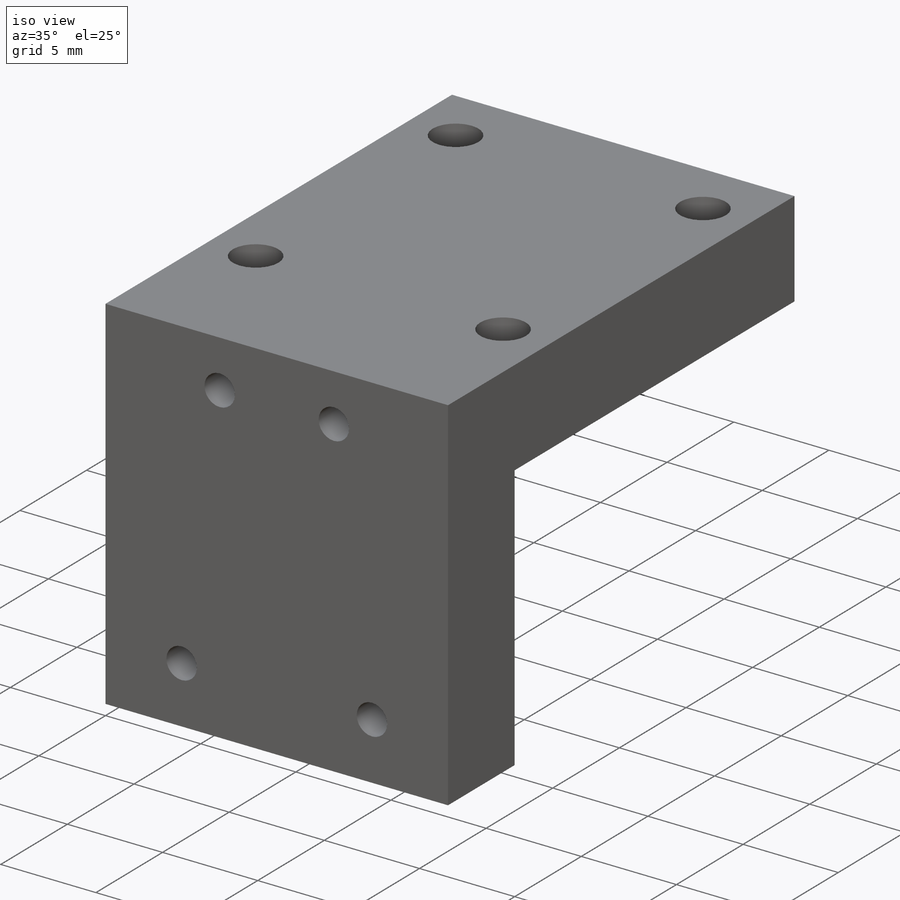
[diagram: iso view]
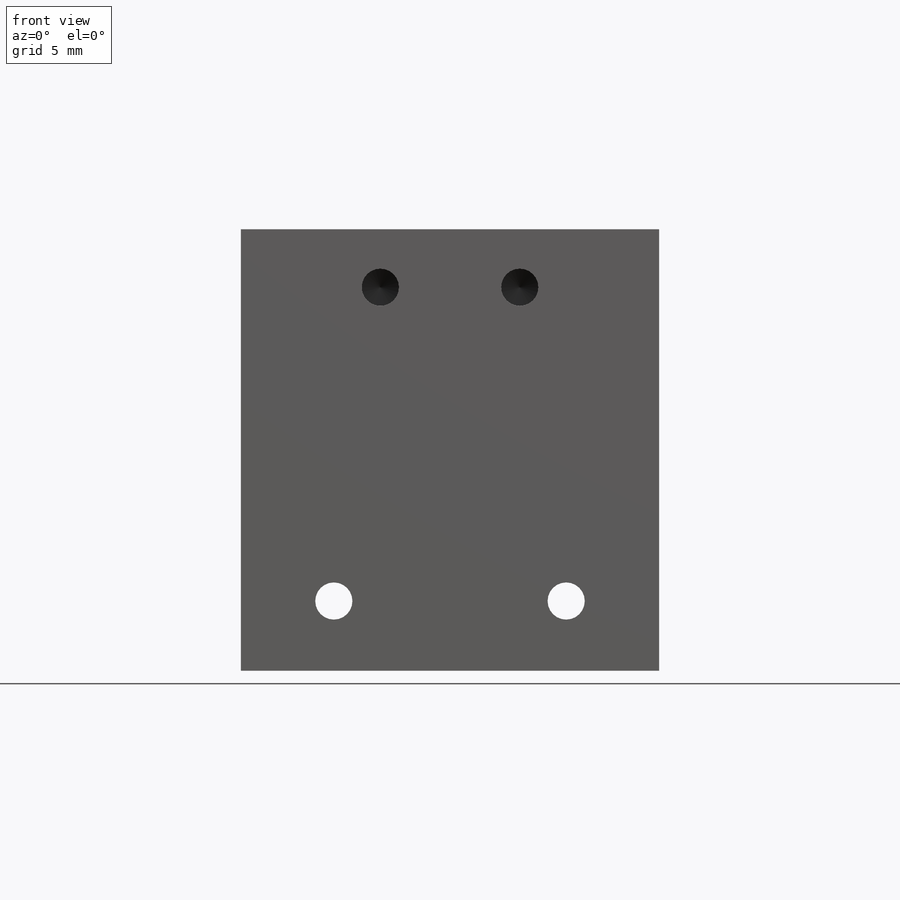
[diagram: front view]
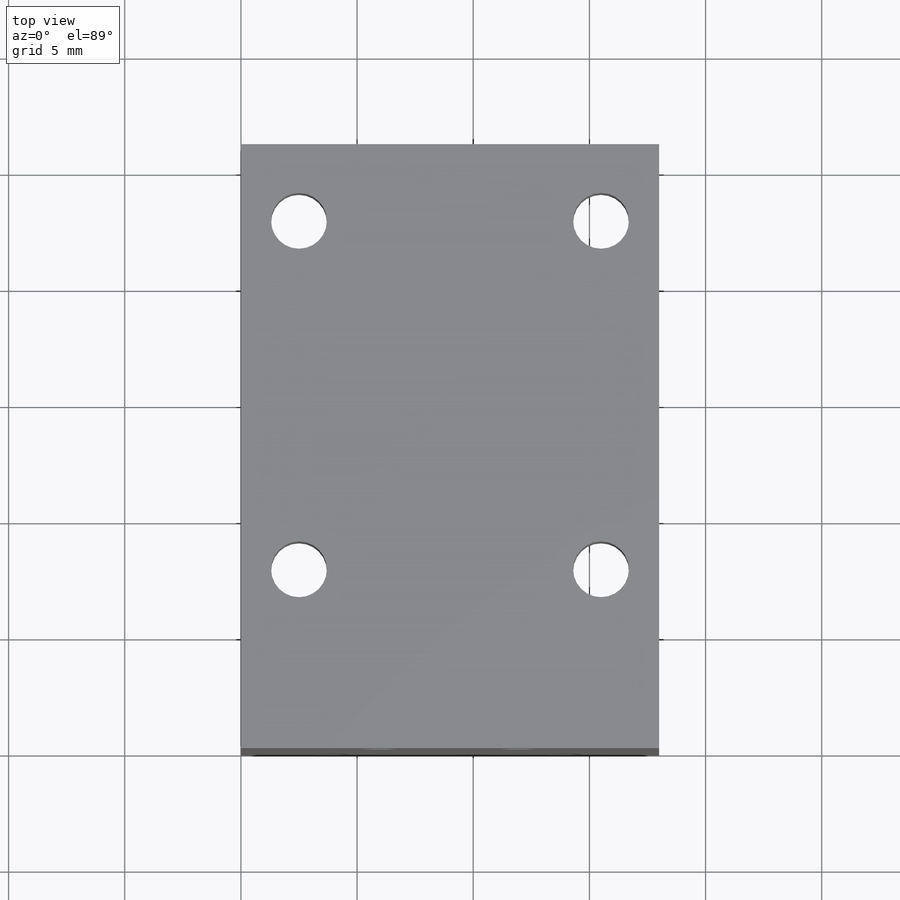
[diagram: top view]
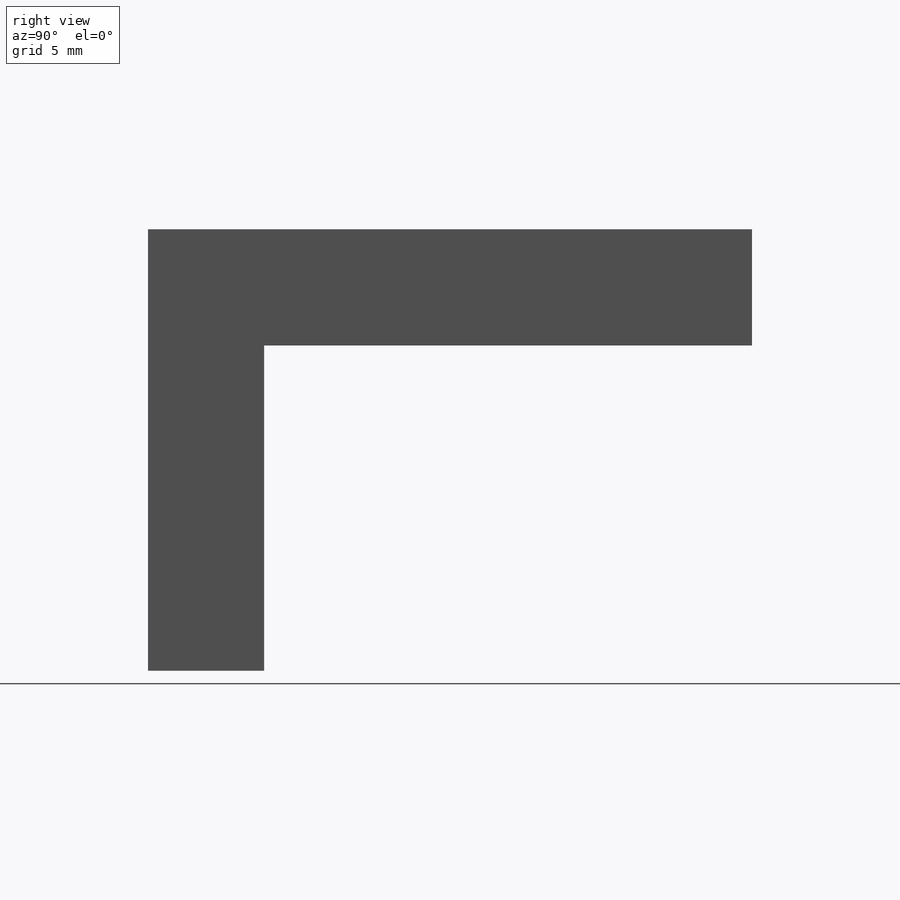
[diagram: right view]
SOLIDWORKS PART (.sldprt)
format: sldprt  version: not decoded by parser v0  size: 504,832 bytes
history: native  units: mm
features: sketch x6, thread x4, extrude x2, hole x2, material x1 (+16 scaffold rows collapsed)
feature tree (31):
  scaffold x16  (default folders/planes/origin — collapsed)
  material  "Material <not specified>"
  sketch  "Sketch1"  dims[c1.D5=2.0mm c1.D3=2.0mm c1.D1=18.0mm c1.D2=26.0mm c2.D3=6.0mm c2.D4=6.5mm c2.D6=7.5mm c3.D3=19.0mm]
  extrude  "Boss-Extrude1"  Depth=5mm
  sketch  "Sketch2"  dims[D1=5.0mm]
  extrude  "Boss-Extrude2"  Depth=14mm
  hole  "M2 Clearance Hole1"  Diameter=2.4mm Depth=10mm
  sketch  "3DSketch2"  dims[c1.D1=6.5mm c1.D5=6.5mm c1.D2=15.0mm c1.D3=13.0mm c2.D1=13.0mm c2.D4=2.5mm c3.D1=2.5mm c3.D3=7.7mm c3.D4=13.0mm]
  sketch  "Sketch5"  dims[hole-wizard template sketch: 47 standard entries collapsed; hole parameters kept: c15.Hole Depth=10.0mm c15.D3=~14.816244mm c15.Drill Angle=118.0deg]
  hole  "M2 Tapped Hole1"  Diameter=1.6mm Depth=11.2mm
  sketch  "Sketch7"  dims[D1=2.5mm D2=6.0mm D3=6.0mm D4=4.0mm D5=4.0mm D6=3.0mm]
  sketch  "Sketch6"  dims[hole-wizard template sketch: 47 standard entries collapsed; hole parameters kept: c15.Tap Drill Depth=11.2mm c15.D3=~14.816244mm c15.Drill Angle=118.0deg]
  thread  "Hole Thread1"  Diameter=5mm  [1 undecoded]
  thread  "Hole Thread2"  Diameter=5mm  [1 undecoded]
  thread  "Hole Thread3"  Diameter=10mm  [1 undecoded]
  thread  "Hole Thread4"  Diameter=10mm  [1 undecoded]
decode coverage: 14 of 14 modeling features carry decoded parameters
note: ~ marks probable driven/reference dimensions
note: 4 parameter values undecoded
note: suppression state not decoded; provenance and decode notes live in map.json
